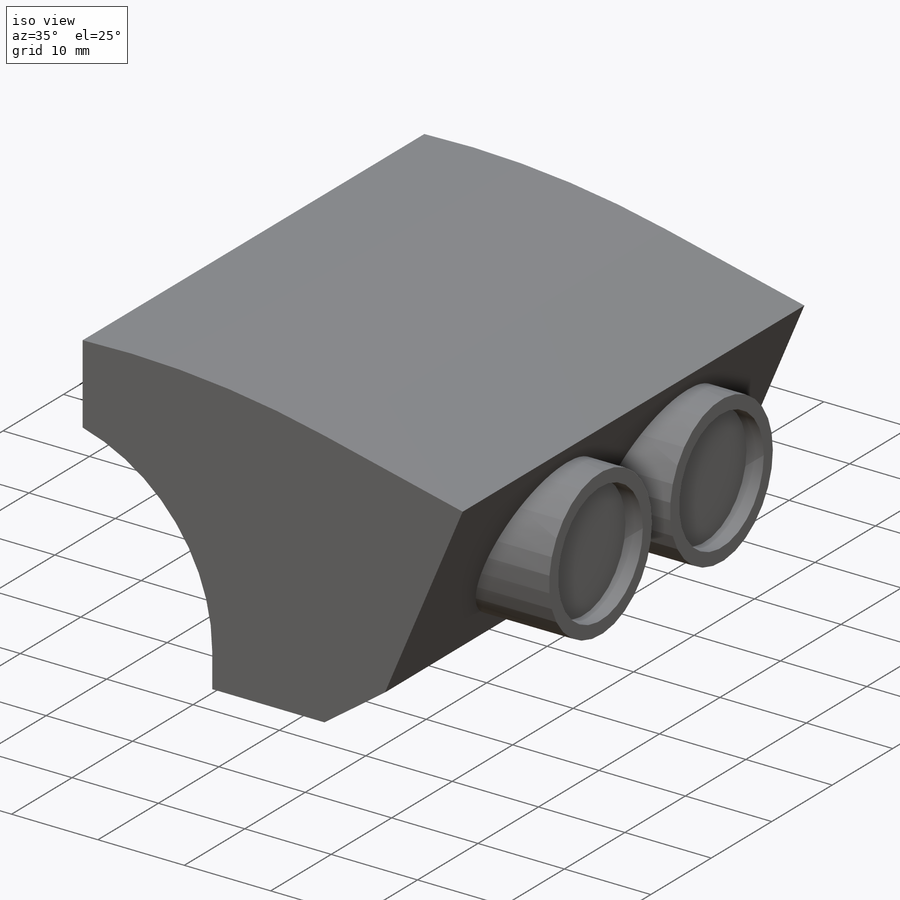
[diagram: iso view]
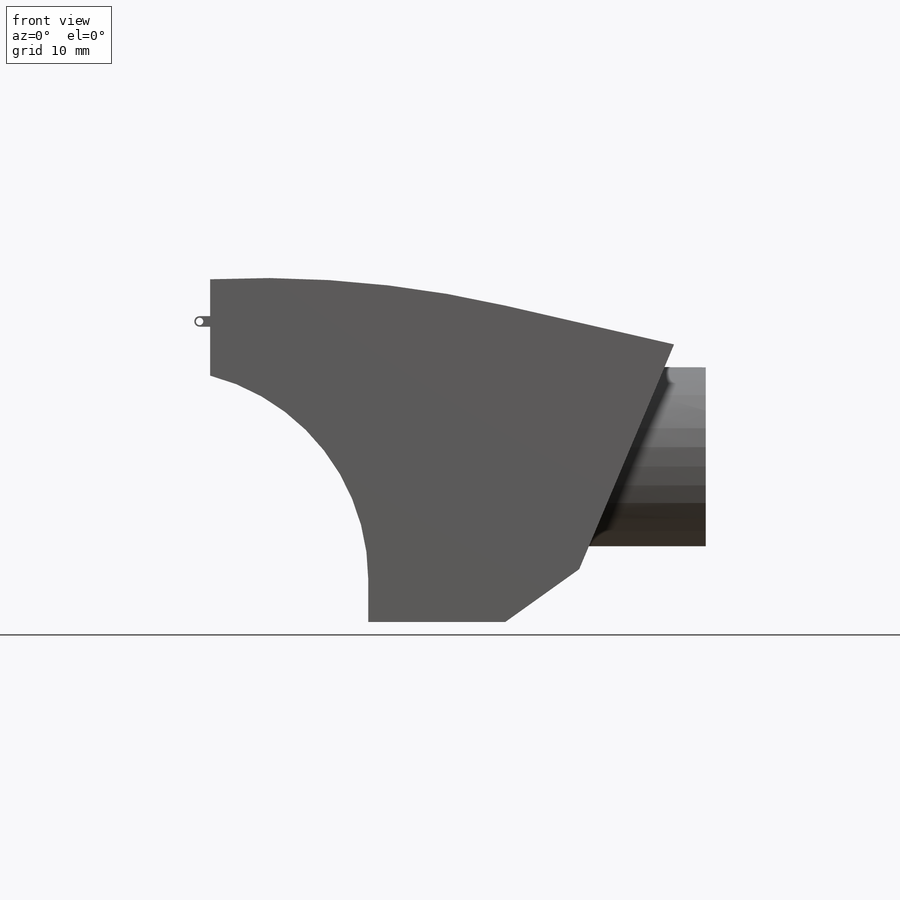
[diagram: front view]
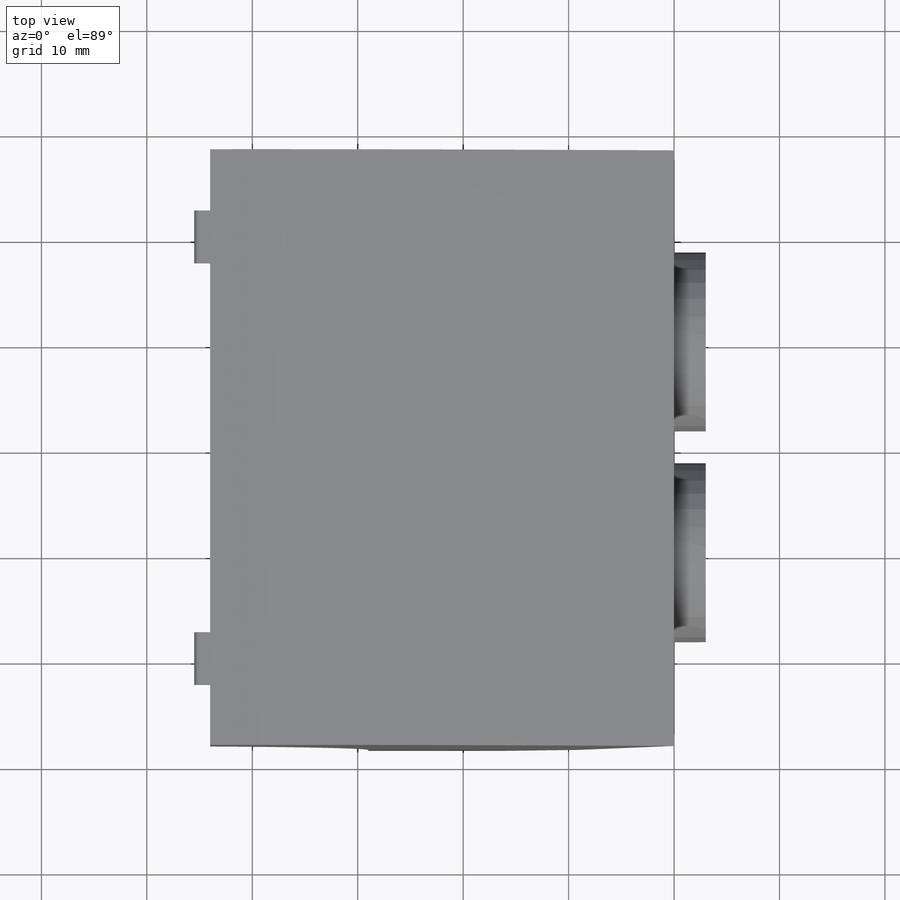
[diagram: top view]
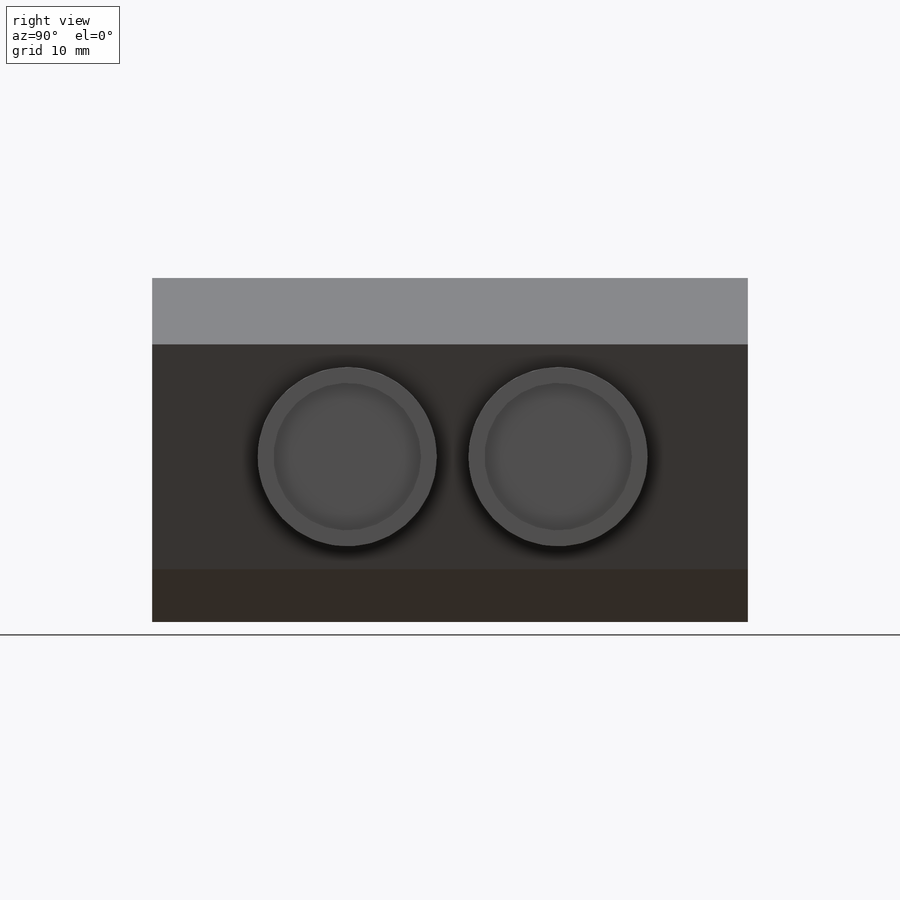
[diagram: right view]
SOLIDWORKS PART (.sldprt)
format: sldprt  version: not decoded by parser v0  size: 337,408 bytes
history: native  units: mm
features: sketch x7, extrude x4, cut_extrude x3, plane x2, material x1, shell x1, mirror x1, pattern_linear x1 (+13 scaffold rows collapsed)
feature tree (33):
  scaffold x13  (default folders/planes/origin — collapsed)
  material  "Material <not specified>"
  sketch  "Sketch1"  dims[D3=4.0mm D1=56.5mm D2=28.0mm]
  extrude  "Boss-Extrude1"  Depth=30mm
  sketch  "Sketch5"  dims[D1=20.0mm D2=4.0mm D3=15.0mm]
  cut_extrude  "Cut-Extrude2"  [1 undecoded]
  shell  "Shell1"  Thickness=1mm
  plane  "Plane1"  Offset=20mm
  sketch  "Sketch3"  dims[D2=0.5mm D1=1.0mm D3=1.5mm]
  extrude  "Boss-Extrude3"  Depth=5mm
  sketch  "Sketch4"  dims[D1=0.15mm]
  cut_extrude  "Cut-Extrude1"  [1 undecoded]
  mirror  "Mirror1"
  sketch  "Sketch6"  dims[D2=103.0mm D1=2.5mm D3=35.0mm D4=44.0mm D5=25.0mm]
  extrude  "Boss-Extrude4"  [1 undecoded]
  plane  "Plane2"  Offset=33mm
  sketch  "Sketch7"  dims[D2=17.0mm D1=18.0mm]
  extrude  "Boss-Extrude5"  [1 undecoded]
  sketch  "Sketch8"  dims[D1=1.5mm]
  cut_extrude  "Cut-Extrude3"  Depth=2mm
  pattern_linear  "LPattern1"  Count1=2 Count2=1 Spacing1=20mm Spacing2=10mm
decode coverage: 12 of 17 modeling features carry decoded parameters
note: 4 parameter values undecoded
summary: no parameter record found for 4 features
note: suppression state not decoded; provenance and decode notes live in map.json
